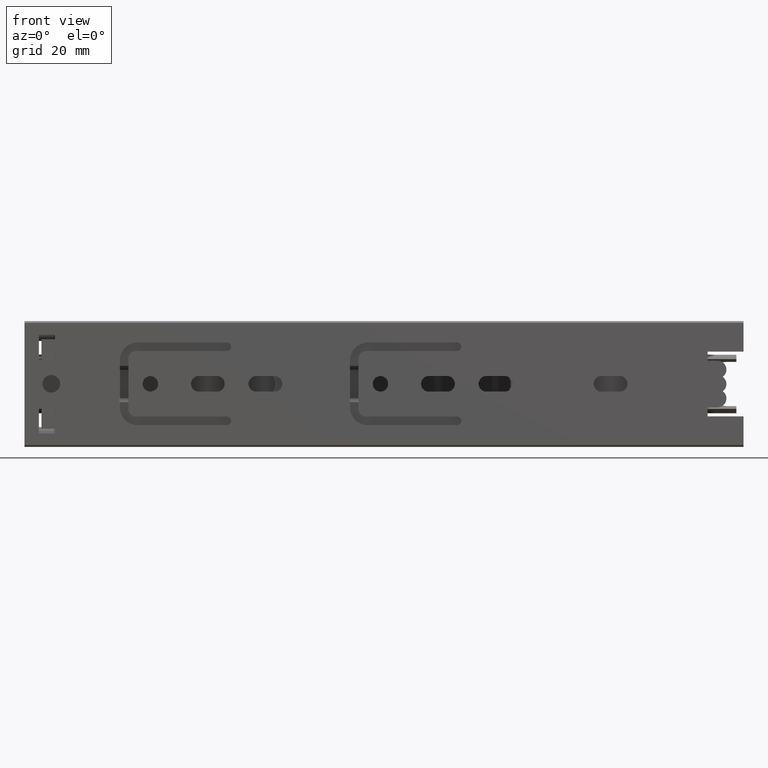
[diagram: clean part render]
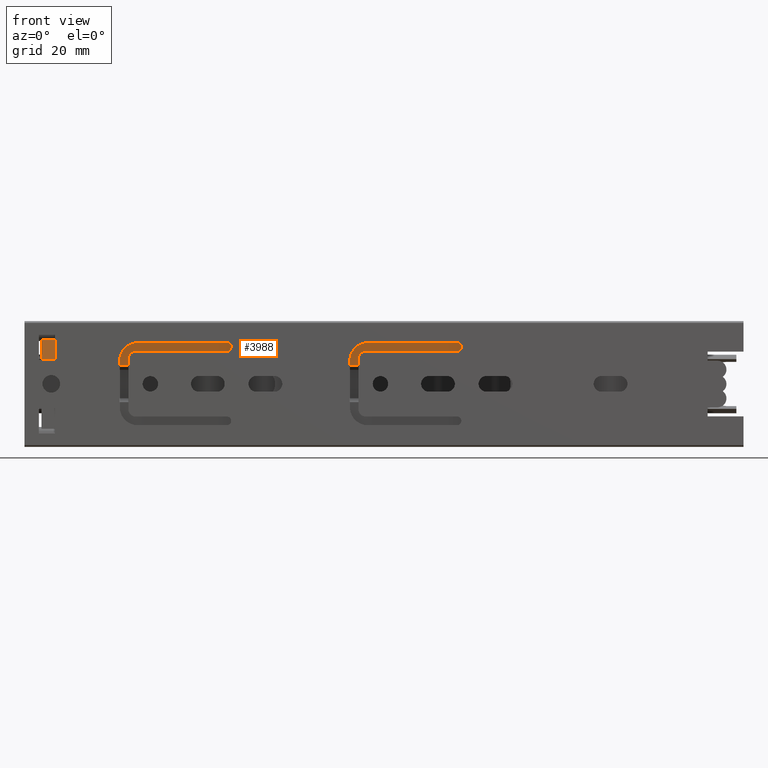
[diagram: same view with one face highlighted and labeled with its STEP entity id]
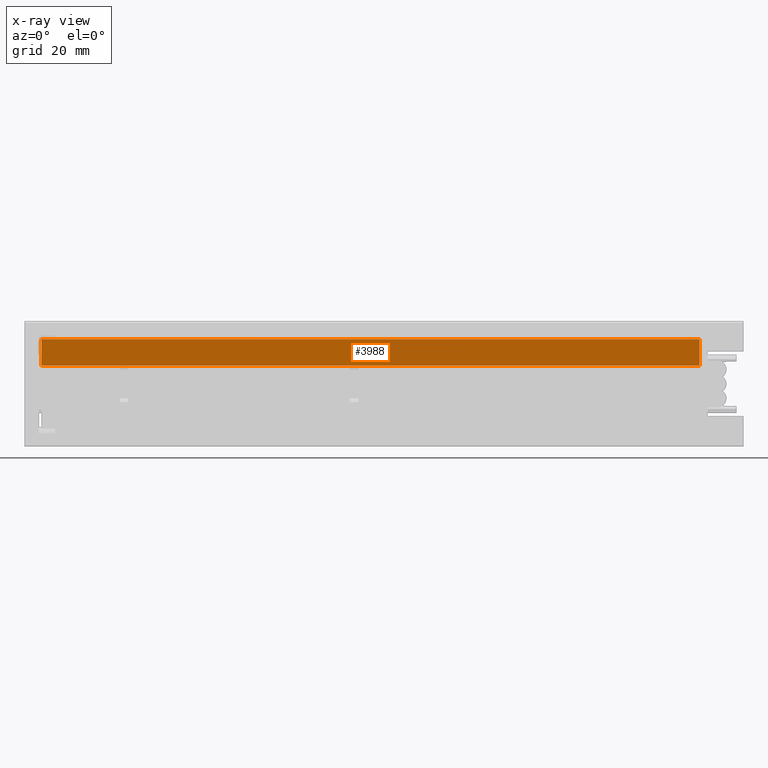
[diagram: x-ray of the same camera — body ghosted, the highlighted face saturated]
A machine part, front view. The second image highlights one B-rep face of the part: STEP entity #3988.
The next image is the same camera in x-ray: the body ghosted, the highlighted face saturated — about 0% of this face is hidden behind the body in this view.
In plain terms, the highlighted planar face has unit normal (-0, -1, 0).
Its self-contained STEP definition (entity closure, byte-faithful):
#297=FACE_OUTER_BOUND('',#535,.T.);
#535=EDGE_LOOP('',(#3286,#3287,#3288,#3289));
#858=LINE('',#6234,#1284);
#893=LINE('',#6330,#1319);
#897=LINE('',#6337,#1323);
#898=LINE('',#6339,#1324);
#1284=VECTOR('',#5064,7.4);
#1319=VECTOR('',#5149,7.4);
#1323=VECTOR('',#5157,183.);
#1324=VECTOR('',#5160,183.);
#1843=VERTEX_POINT('',#6231);
#1844=VERTEX_POINT('',#6233);
#1879=VERTEX_POINT('',#6327);
#1880=VERTEX_POINT('',#6329);
#2327=EDGE_CURVE('',#1843,#1844,#858,.T.);
#2375=EDGE_CURVE('',#1879,#1880,#893,.T.);
#2379=EDGE_CURVE('',#1843,#1880,#897,.T.);
#2380=EDGE_CURVE('',#1844,#1879,#898,.T.);
#3286=ORIENTED_EDGE('',*,*,#2379,.T.);
#3287=ORIENTED_EDGE('',*,*,#2375,.F.);
#3288=ORIENTED_EDGE('',*,*,#2380,.F.);
#3289=ORIENTED_EDGE('',*,*,#2327,.F.);
#3810=PLANE('',#4301);
#3988=ADVANCED_FACE('',(#297),#3810,.T.);
#4301=AXIS2_PLACEMENT_3D('',#6338,#5158,#5159);
#5064=DIRECTION('',(0.,2.25045207694288E-16,1.));
#5149=DIRECTION('',(0.,-2.25045207694288E-16,-1.));
#5157=DIRECTION('',(1.,0.,0.));
#5158=DIRECTION('center_axis',(0.,-1.,2.25045207694288E-16));
#5159=DIRECTION('ref_axis',(0.,-2.22044604925031E-16,-1.));
#5160=DIRECTION('',(1.,0.,0.));
#6231=CARTESIAN_POINT('',(-91.5,2.50000000000001,5.05));
#6233=CARTESIAN_POINT('',(-91.5,2.50000000000001,12.45));
#6234=CARTESIAN_POINT('',(-91.5,2.50000000000001,12.45));
#6327=CARTESIAN_POINT('',(91.5,2.50000000000001,12.45));
#6329=CARTESIAN_POINT('',(91.5,2.50000000000001,5.05));
#6330=CARTESIAN_POINT('',(91.5,2.50000000000001,12.45));
#6337=CARTESIAN_POINT('',(0.,2.50000000000001,5.05));
#6338=CARTESIAN_POINT('Origin',(0.,2.50000000000001,12.45));
#6339=CARTESIAN_POINT('',(0.,2.50000000000001,12.45));